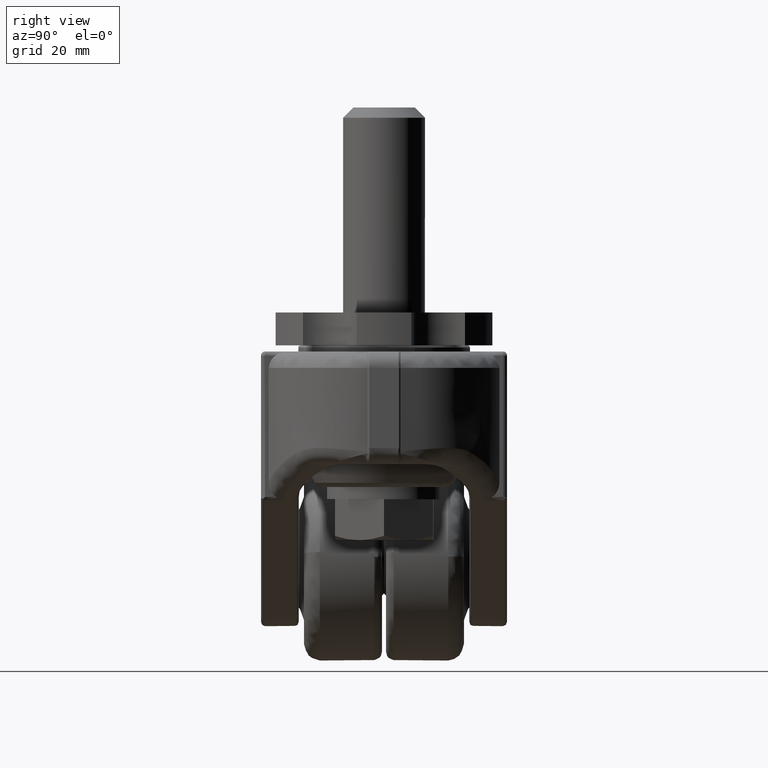
[diagram: clean part render]
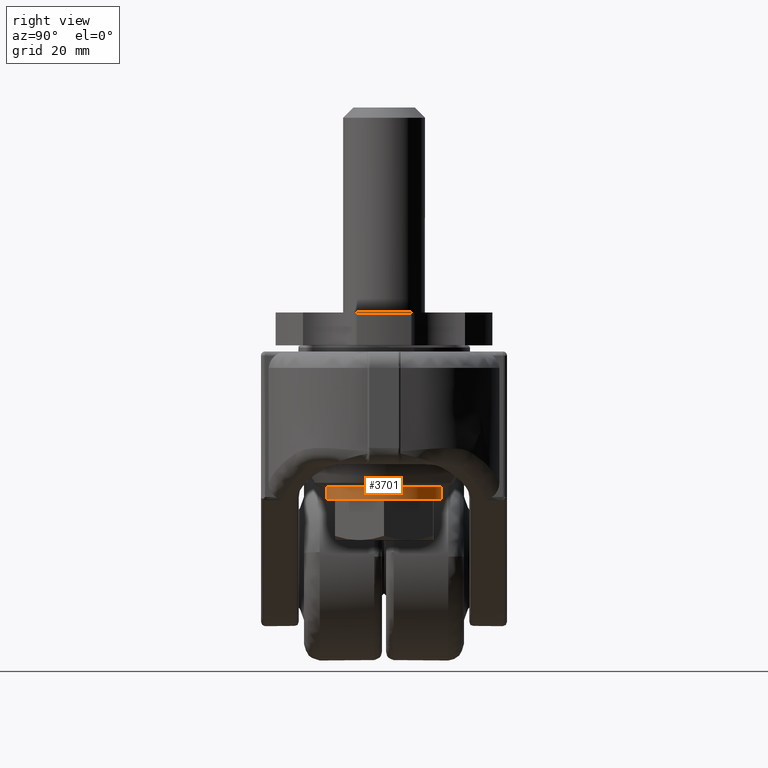
[diagram: same view with one face highlighted and labeled with its STEP entity id]
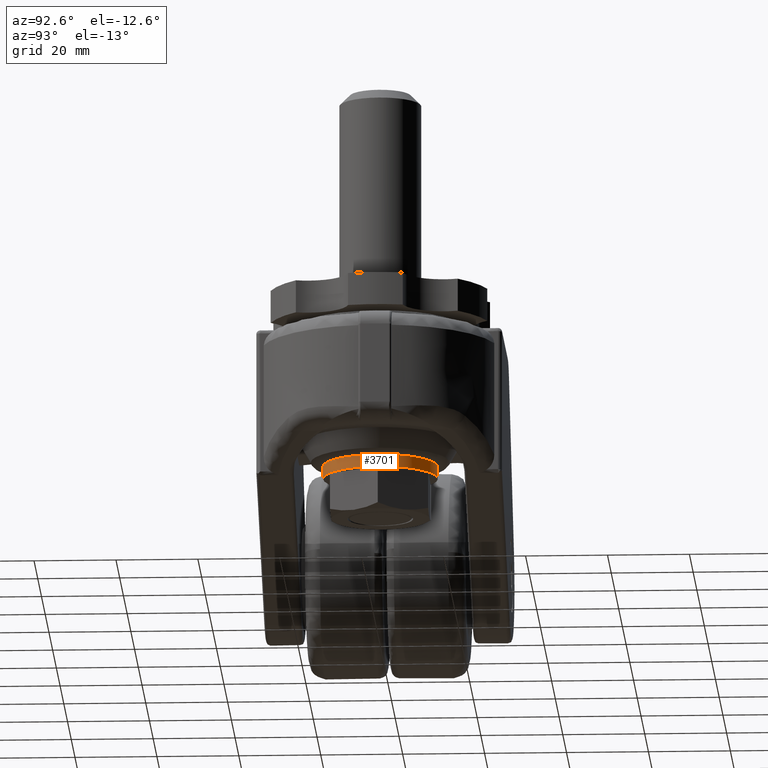
[diagram: same view with one face highlighted and labeled with its STEP entity id]
A machine part, right view. The second image highlights one B-rep face of the part: STEP entity #3701.
A second angle (auxiliary view) of the same face is appended — the face is thin or edge-on in the first view.
In plain terms, the highlighted face is a freeform B-spline surface patch.
Its self-contained STEP definition (entity closure, byte-faithful):
#3599=CARTESIAN_POINT('',(-1.652479285194618,13.902133369091327,-39.475000000000009));
#3600=CARTESIAN_POINT('',(-1.254606200931687,13.949426616280478,-39.474999999999987));
#3601=CARTESIAN_POINT('',(-0.854679553487998,13.973887177906130,-39.474999999999987));
#3602=CARTESIAN_POINT('',(13.119207624418136,14.828566731394133,-39.474999999999994));
#3603=CARTESIAN_POINT('',(13.973887177906130,0.854679553487998,-39.474999999999987));
#3604=CARTESIAN_POINT('',(14.828566731394133,-13.119207624418136,-39.474999999999994));
#3605=CARTESIAN_POINT('',(0.854679553487998,-13.973887177906130,-39.474999999999987));
#3606=CARTESIAN_POINT('',(-1.652479285194618,13.902133369091327,-42.626875000000013));
#3607=CARTESIAN_POINT('',(-1.254606200931687,13.949426616280478,-42.626875000000005));
#3608=CARTESIAN_POINT('',(-0.854679553487998,13.973887177906130,-42.626875000000013));
#3609=CARTESIAN_POINT('',(13.119207624418136,14.828566731394133,-42.626875000000013));
#3610=CARTESIAN_POINT('',(13.973887177906130,0.854679553487998,-42.626875000000013));
#3611=CARTESIAN_POINT('',(14.828566731394133,-13.119207624418136,-42.626875000000013));
#3612=CARTESIAN_POINT('',(0.854679553487998,-13.973887177906130,-42.626875000000013));
#3620=(BOUNDED_SURFACE()B_SPLINE_SURFACE(2,1,((#3599,#3606),(#3600,#3607),(#3601,#3608),(#3602,#3609),(#3603,#3610),(#3604,#3611),(#3605,#3612)),.UNSPECIFIED.,.F.,.F.,.U.)B_SPLINE_SURFACE_WITH_KNOTS((3,2,2,3),(2,2),(0.0,0.927838379715734,24.123797872609050,47.319757365502362),(0.0,3.151875000000011),.UNSPECIFIED.)GEOMETRIC_REPRESENTATION_ITEM()RATIONAL_B_SPLINE_SURFACE(((0.977505800795127,0.977505800795127),(0.988284271247462,0.988284271247462),(1.0,1.0),(0.707106781186548,0.707106781186548),(1.0,1.0),(0.707106781186548,0.707106781186548),(1.0,1.0)))REPRESENTATION_ITEM('')SURFACE());
#3621=CARTESIAN_POINT('',(-1.652479285302485,13.902133369078509,-42.549999999999997));
#3622=VERTEX_POINT('',#3621);
#3623=CARTESIAN_POINT('',(14.0,0.0,-42.549999999999997));
#3624=VERTEX_POINT('',#3623);
#3625=CARTESIAN_POINT('',(-1.652479285302485,13.902133369078507,-42.549999999999990));
#3626=CARTESIAN_POINT('',(-0.829137675235749,14.000000000000002,-42.550000000000004));
#3627=CARTESIAN_POINT('',(0.0,14.0,-42.549999999999997));
#3628=CARTESIAN_POINT('',(13.999999999999998,13.999999999999998,-42.549999999999990));
#3629=CARTESIAN_POINT('',(14.0,0.0,-42.549999999999997));
#3637=(BOUNDED_CURVE()B_SPLINE_CURVE(2,(#3625,#3626,#3627,#3628,#3629),.UNSPECIFIED.,.F.,.U.)B_SPLINE_CURVE_WITH_KNOTS((3,2,3),(0.229562473513022,0.250000000000000,0.500000000000000),.UNSPECIFIED.)CURVE()GEOMETRIC_REPRESENTATION_ITEM()RATIONAL_B_SPLINE_CURVE((0.956026754182745,0.976055948330575,1.0,0.707106781186547,1.0))REPRESENTATION_ITEM(''));
#3638=EDGE_CURVE('',#3622,#3624,#3637,.T.);
#3639=ORIENTED_EDGE('',*,*,#3638,.F.);
#3640=CARTESIAN_POINT('',(-1.652479285302485,13.902133369078509,-39.549999999999997));
#3641=VERTEX_POINT('',#3640);
#3642=CARTESIAN_POINT('',(-1.652479285302485,13.902133369078509,-39.549999999999997));
#3643=CARTESIAN_POINT('',(-1.652479285302485,13.902133369078509,-42.549999999999997));
#3644=QUASI_UNIFORM_CURVE('',1,(#3642,#3643),.UNSPECIFIED.,.F.,.U.);
#3645=EDGE_CURVE('',#3641,#3622,#3644,.T.);
#3646=ORIENTED_EDGE('',*,*,#3645,.F.);
#3647=CARTESIAN_POINT('',(14.0,0.0,-39.549999999999997));
#3648=VERTEX_POINT('',#3647);
#3649=CARTESIAN_POINT('',(-1.652479285302485,13.902133369078507,-39.550000000000004));
#3650=CARTESIAN_POINT('',(-0.829137675235749,14.000000000000002,-39.550000000000004));
#3651=CARTESIAN_POINT('',(0.0,14.0,-39.549999999999997));
#3652=CARTESIAN_POINT('',(13.999999999999998,13.999999999999998,-39.549999999999997));
#3653=CARTESIAN_POINT('',(14.0,0.0,-39.549999999999997));
#3661=(BOUNDED_CURVE()B_SPLINE_CURVE(2,(#3649,#3650,#3651,#3652,#3653),.UNSPECIFIED.,.F.,.U.)B_SPLINE_CURVE_WITH_KNOTS((3,2,3),(0.229562473513022,0.250000000000000,0.500000000000000),.UNSPECIFIED.)CURVE()GEOMETRIC_REPRESENTATION_ITEM()RATIONAL_B_SPLINE_CURVE((0.956026754182745,0.976055948330575,1.0,0.707106781186547,1.0))REPRESENTATION_ITEM(''));
#3662=EDGE_CURVE('',#3641,#3648,#3661,.T.);
#3663=ORIENTED_EDGE('',*,*,#3662,.T.);
#3664=CARTESIAN_POINT('',(0.854679553626525,-13.973887177897661,-39.550000000000011));
#3665=VERTEX_POINT('',#3664);
#3666=CARTESIAN_POINT('',(14.0,0.0,-39.549999999999997));
#3667=CARTESIAN_POINT('',(13.999999999999995,-13.169884936418150,-39.549999999999997));
#3668=CARTESIAN_POINT('',(0.854679553626525,-13.973887177897661,-39.550000000000004));
#3676=(BOUNDED_CURVE()B_SPLINE_CURVE(2,(#3666,#3667,#3668),.UNSPECIFIED.,.F.,.U.)B_SPLINE_CURVE_WITH_KNOTS((3,3),(0.500000000000000,0.739332962238548),.UNSPECIFIED.)CURVE()GEOMETRIC_REPRESENTATION_ITEM()RATIONAL_B_SPLINE_CURVE((1.0,0.719603993287173,0.976072041665871))REPRESENTATION_ITEM(''));
#3677=EDGE_CURVE('',#3648,#3665,#3676,.T.);
#3678=ORIENTED_EDGE('',*,*,#3677,.T.);
#3679=CARTESIAN_POINT('',(0.854679553626530,-13.973887177897661,-42.549999999999997));
#3680=VERTEX_POINT('',#3679);
#3681=CARTESIAN_POINT('',(0.854679553626525,-13.973887177897661,-39.550000000000011));
#3682=CARTESIAN_POINT('',(0.854679553626530,-13.973887177897661,-42.549999999999997));
#3683=QUASI_UNIFORM_CURVE('',1,(#3681,#3682),.UNSPECIFIED.,.F.,.U.);
#3684=EDGE_CURVE('',#3665,#3680,#3683,.T.);
#3685=ORIENTED_EDGE('',*,*,#3684,.T.);
#3686=CARTESIAN_POINT('',(14.0,0.0,-42.549999999999997));
#3687=CARTESIAN_POINT('',(13.999999999999995,-13.169884936418150,-42.550000000000004));
#3688=CARTESIAN_POINT('',(0.854679553626530,-13.973887177897661,-42.549999999999997));
#3696=(BOUNDED_CURVE()B_SPLINE_CURVE(2,(#3686,#3687,#3688),.UNSPECIFIED.,.F.,.U.)B_SPLINE_CURVE_WITH_KNOTS((3,3),(0.500000000000000,0.739332962238548),.UNSPECIFIED.)CURVE()GEOMETRIC_REPRESENTATION_ITEM()RATIONAL_B_SPLINE_CURVE((1.0,0.719603993287173,0.976072041665871))REPRESENTATION_ITEM(''));
#3697=EDGE_CURVE('',#3624,#3680,#3696,.T.);
#3698=ORIENTED_EDGE('',*,*,#3697,.F.);
#3699=EDGE_LOOP('',(#3639,#3646,#3663,#3678,#3685,#3698));
#3700=FACE_OUTER_BOUND('',#3699,.T.);
#3701=ADVANCED_FACE('',(#3700),#3620,.T.);